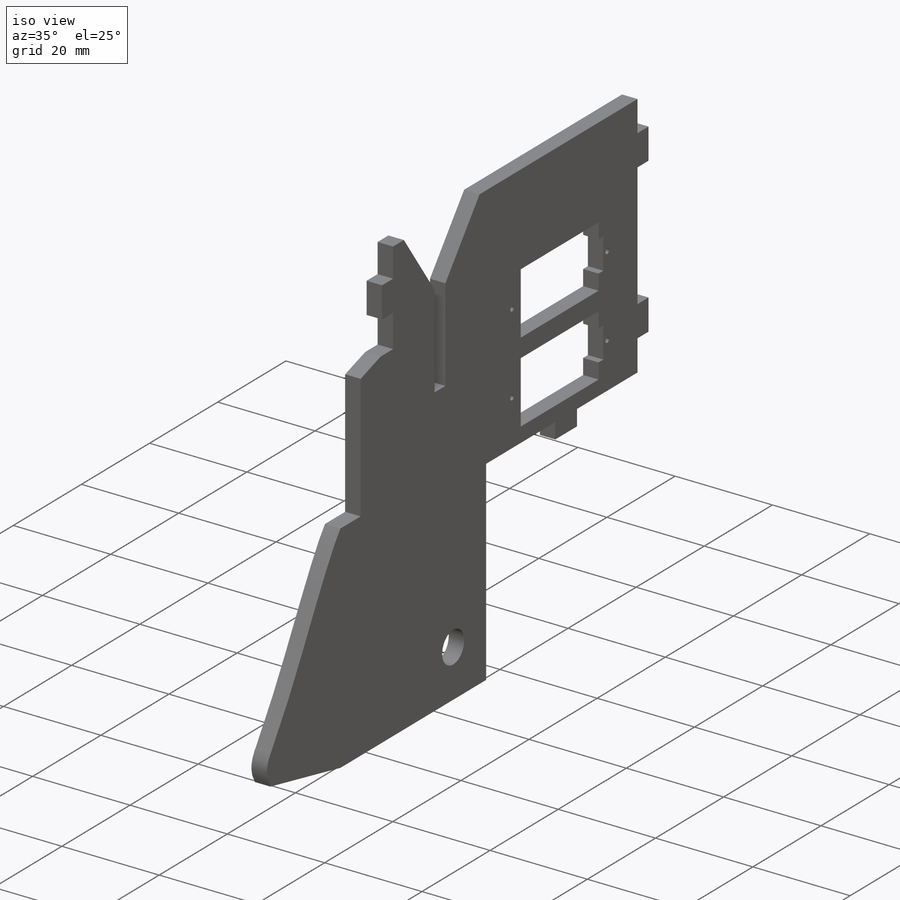
[diagram: iso view]
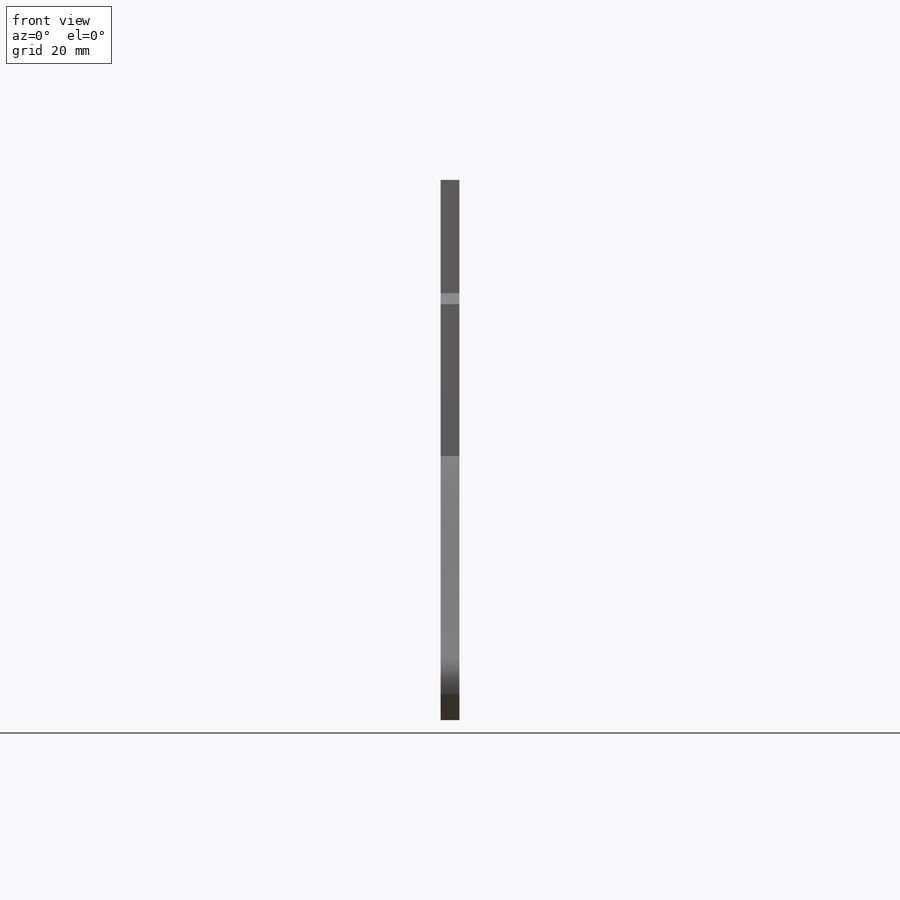
[diagram: front view]
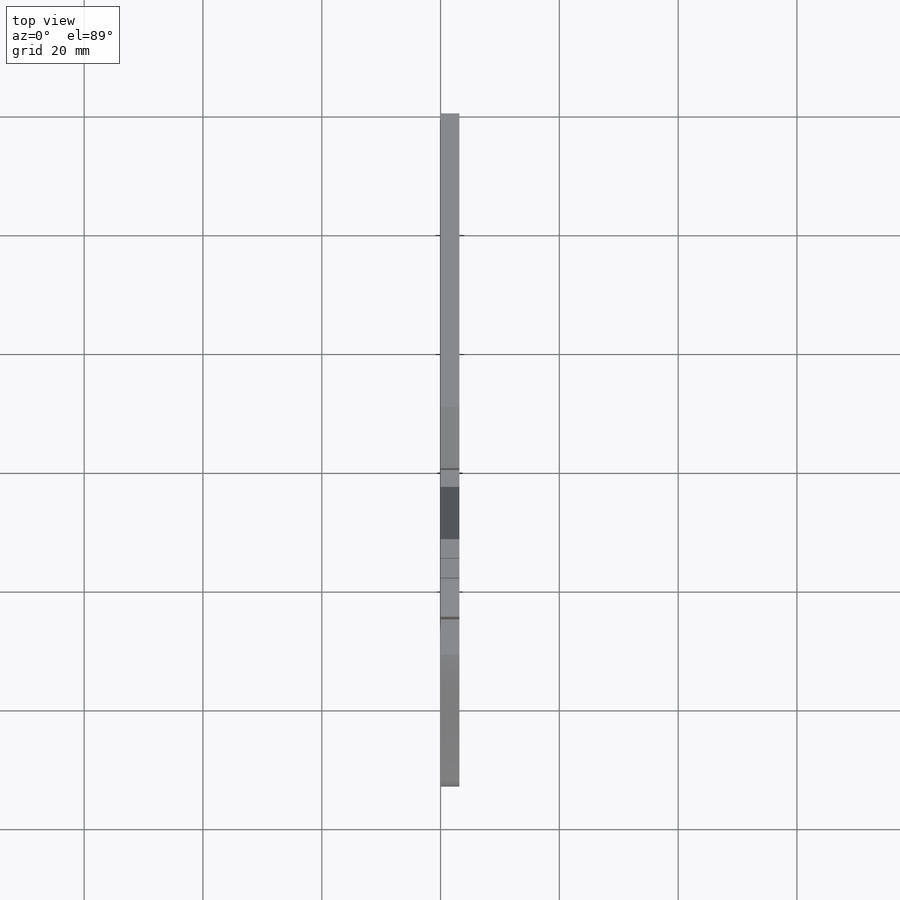
[diagram: top view]
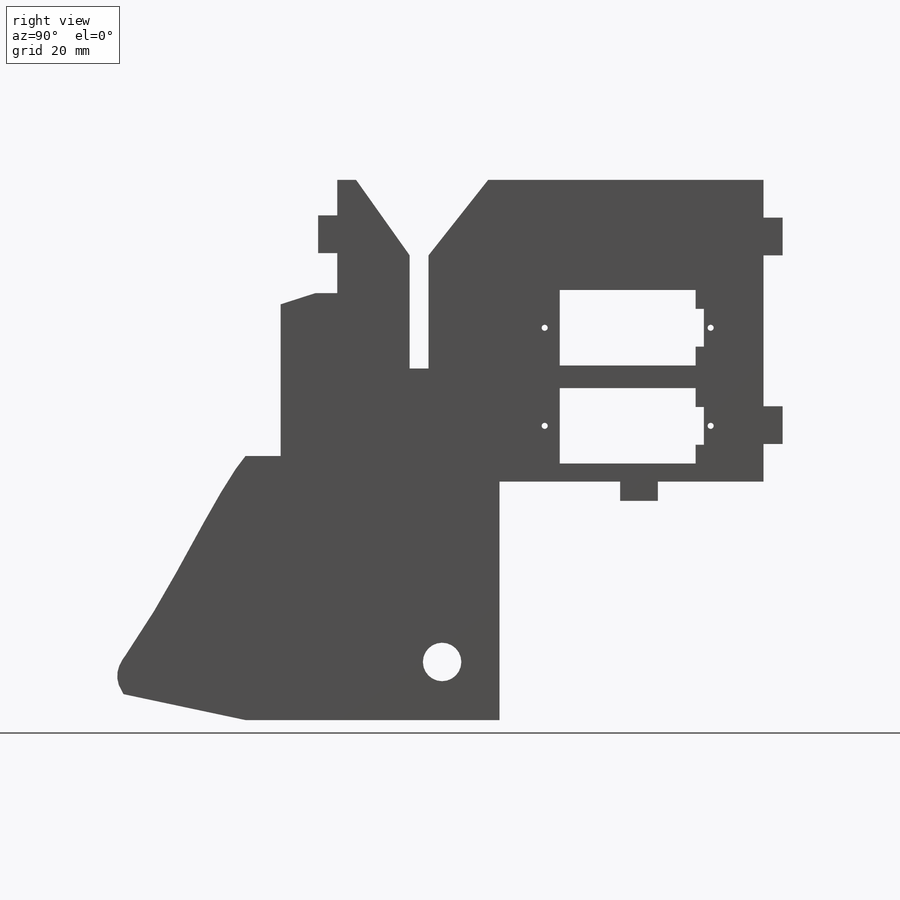
[diagram: right view]
SOLIDWORKS PART (.sldprt)
format: sldprt  version: not decoded by parser v0  size: 456,704 bytes
history: native  units: mm
features: sketch x7, extrude x4, cut_extrude x3, material x1, plane x1 (+16 scaffold rows collapsed)
feature tree (32):
  scaffold x16  (default folders/planes/origin — collapsed)
  material  "Material <not specified>"
  sketch  "Sketch1"  dims[D1=50.8mm D2=71.755mm]
  extrude  "main body"  Depth=3.175mm
  sketch  "Sketch2"  dims[c1.D1=3.2258mm c1.D2=6.35mm c1.D3=6.35mm c1.D4=3.2258mm c1.D5=21.59mm c1.D6=5.969mm c2.D3=3.2258mm c2.D4=6.35mm c2.D5=6.35mm c2.D7=3.2258mm c2.D8=6.35mm c2.D9=6.35mm c2.D10=6.35mm c2.D11=6.35mm c2.D12=3.2258mm c2.D13=3.2258mm c2.D14=12.7mm c2.D15=19.05mm c3.D10=47.625mm]
  extrude  "tabs"  Depth=3.175mm
  plane  "Plane1"  Offset=0mm
  sketch  "Sketch3"  dims[c1.D1=0.9211mm c1.D18=1.524mm c2.D1=1.5875mm c2.D2=18.288mm c3.D1=10.922mm c3.D3=~29.668192mm c4.D3=56.0deg c4.D4=~7.996573mm c5.D4=124.0deg c5.D5=~31.645371mm c6.D5=118.0deg c6.D6=~8.214614mm c7.D6=140.0deg c7.D7=~20.54552mm c7.D8=~15.449441mm c7.D9=~20.246961mm c7.D10=21.59mm c7.D11=~44.456574mm c7.D12=~31.923174mm c7.D13=~29.668192mm c7.D14=~17.352833mm c7.D15=~4.367085mm c7.D16=~7.493997mm c7.D17=~10.827517mm c7.D2=~29.151351mm c7.D3=3.175mm c7.D4=1.1176mm c8.D13=~3.774238mm c8.D14=~3.774238mm c9.D13=3.937mm c9.D14=~35.360922mm c9.D2=31.75mm c9.D3=9.525mm c9.D4=~5.924441mm]
  extrude  "nose section"  Depth=3.175mm
  sketch  "Sketch8"  dims[c1.D5=1.016mm c1.D6=1.016mm c1.D9=2.032mm c1.D1=27.94mm c1.D2=6.35mm c1.D3=22.86mm c1.D4=12.7mm c1.D7=1.397mm c1.D8=6.35mm c2.D9=8.636mm c2.D1=20.32mm c2.D2=45.72mm c2.D3=45.72mm c2.D4=33.02mm c3.D2=45.72mm c3.D3=45.72mm c3.D4=5.08mm c3.D5=13.97mm c3.D1=9.398mm c4.D2=25.908mm c4.D3=17.78mm c4.D4=54.229mm c4.D5=59.309mm c5.D3=54.229mm]
  cut_extrude  "cut for motors"  [1 undecoded]
  sketch  "Sketch9"  dims[c1.D1=50.8mm c1.D2=3.2258mm c1.D3=25.4mm c2.D1=50.8mm c2.D2=3.175mm c2.D3=31.75mm c2.D4=9.525mm c2.D5=3.175mm c2.D6=9.525mm c2.D7=3.175mm c3.D1=12.192mm]
  cut_extrude  "slot for firewall"  [1 undecoded]
  sketch  "Sketch10"  dims[c1.D1=22.86mm c1.D2=22.86mm c2.D1=6.35mm c2.D3=10.16mm c2.D4=12.7mm c2.D2=34.29mm]
  extrude  "extension for axle"  Depth=3.175mm
  sketch  "Sketch11"  dims[D1=6.477mm D2=~9.784788mm D3=9.652mm]
  cut_extrude  "cut for axle"  [1 undecoded]
decode coverage: 11 of 14 modeling features carry decoded parameters
note: ~ marks probable driven/reference dimensions
note: 3 parameter values undecoded
summary: no parameter record found for 3 features
note: suppression state not decoded; provenance and decode notes live in map.json
